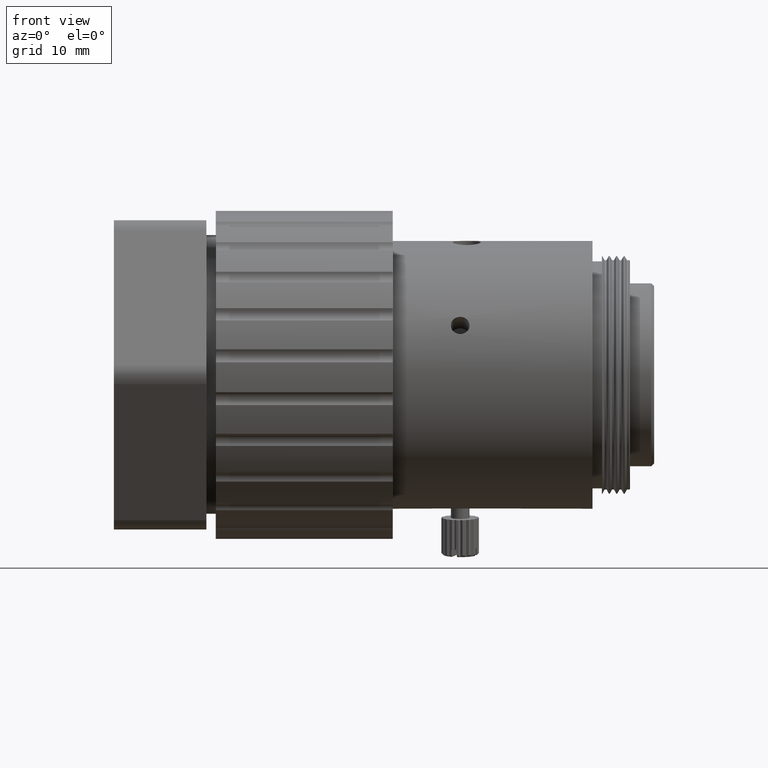
[diagram: clean part render]
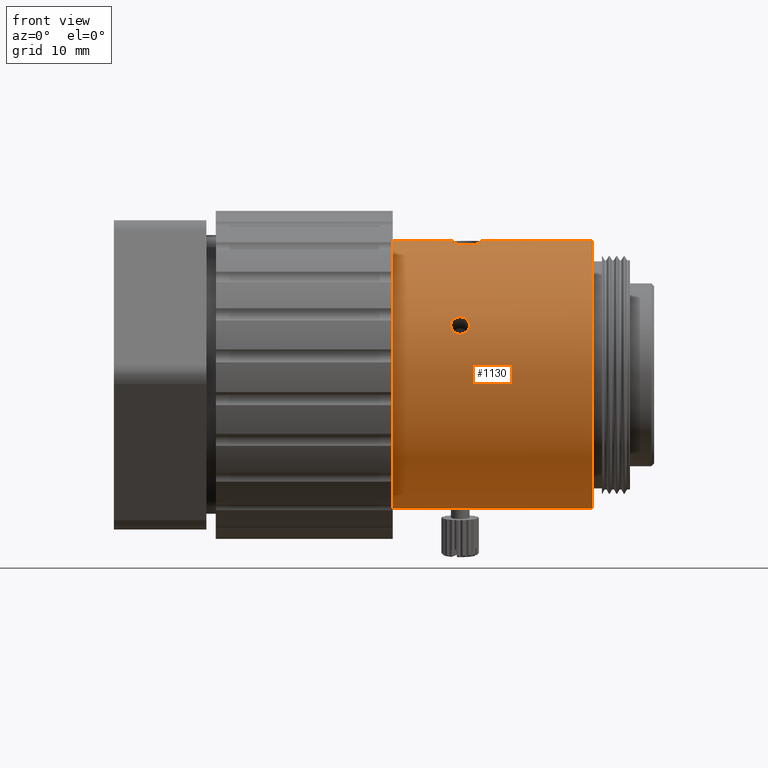
[diagram: same view with one face highlighted and labeled with its STEP entity id]
A machine part, front view. The second image highlights one B-rep face of the part: STEP entity #1130.
In plain terms, the highlighted cylindrical surface (bore or boss wall) has radius 14.3 mm, axis along (-1, 0, -0).
Its self-contained STEP definition (entity closure, byte-faithful):
#1 = CARTESIAN_POINT ( 'NONE',  ( -1.324077568558273743, -7.933964878548129818, 14.25220448190231437 ) ) ;
#70 = CARTESIAN_POINT ( 'NONE',  ( 0.2576665009666546657, -7.395506073452908780, 14.28601457630484362 ) ) ;
#139 = CARTESIAN_POINT ( 'NONE',  ( -0.5196871835990392041, -10.26879189229213551, 13.86359534184631315 ) ) ;
#218 = CARTESIAN_POINT ( 'NONE',  ( -8.031010005843386423, -8.842898544661640159, 14.14792264784226994 ) ) ;
#259 = CARTESIAN_POINT ( 'NONE',  ( -1.714414285791017400, -4.185195401091377221, -14.06627115634364600 ) ) ;
#297 = CARTESIAN_POINT ( 'NONE',  ( -1.103766873488263300, -5.651025446061972879, -14.25679402345944702 ) ) ;
#373 = CARTESIAN_POINT ( 'NONE',  ( -0.8410100058435787673, -19.65411457331178724, 6.189286193671206249 ) ) ;
#534 = DIRECTION ( 'NONE',  ( -1.000000000000000000, 0.000000000000000000, -0.000000000000000000 ) ) ;
#577 = FACE_BOUND ( 'NONE', #813, .T. ) ;
#617 = EDGE_CURVE ( 'NONE', #7153, #7153, #4363, .T. ) ;
#677 = CIRCLE ( 'NONE', #9296, 14.29999999999909122 ) ;
#714 = CARTESIAN_POINT ( 'NONE',  ( -8.031010005843386423, -6.762926249001210977, 2.442490654175344389E-12 ) ) ;
#729 = CARTESIAN_POINT ( 'NONE',  ( -1.714846124594646248, 4.130587007314180603, 9.264763993082496540 ) ) ;
#813 = EDGE_LOOP ( 'NONE', ( #8073 ) ) ;
#867 = FACE_OUTER_BOUND ( 'NONE', #996, .T. ) ;
#871 = CARTESIAN_POINT ( 'NONE',  ( -1.640345588966639623, -20.27007120597667722, 4.696334760391738250 ) ) ;
#996 = EDGE_LOOP ( 'NONE', ( #11852 ) ) ;
#1022 = CARTESIAN_POINT ( 'NONE',  ( -0.8410100058433567227, 3.801450460732880288, 9.637631697405945275 ) ) ;
#1041 = EDGE_CURVE ( 'NONE', #5941, #5941, #11538, .T. ) ;
#1083 = CARTESIAN_POINT ( 'NONE',  ( -1.260777506208356824, -7.856905644869738303, 14.25826126729743848 ) ) ;
#1097 = CARTESIAN_POINT ( 'NONE',  ( -1.841099935117180397, -20.00753024451163498, 5.393281480628593805 ) ) ;
#1130 = ADVANCED_FACE ( 'NONE', ( #867, #577, #2901, #5291, #10219, #12551 ), #8987, .T. ) ;
#1155 = CARTESIAN_POINT ( 'NONE',  ( -1.591805947792884091, -9.231458202062983176, 14.08649644016998970 ) ) ;
#1172 = CARTESIAN_POINT ( 'NONE',  ( -0.9731716438800619429, -20.39154841174547883, 4.330202991217740660 ) ) ;
#1234 = CARTESIAN_POINT ( 'NONE',  ( -1.323052682587636086, -9.744660795587805069, 13.98591675747003116 ) ) ;
#1297 = CARTESIAN_POINT ( 'NONE',  ( -0.7112399119408362447, -5.677501061011724026, -14.25874651466089915 ) ) ;
#1338 = CARTESIAN_POINT ( 'NONE',  ( -1.641019235365641649, -4.077027158768557591, -14.04580602406057110 ) ) ;
#1372 = CARTESIAN_POINT ( 'NONE',  ( -1.814981165695513488, -4.942283810026044222, -14.18414370698448224 ) ) ;
#1380 = CARTESIAN_POINT ( 'NONE',  ( -1.431734426196322740, -9.585459424632102099, 14.01891275832945105 ) ) ;
#1538 = CARTESIAN_POINT ( 'NONE',  ( -0.2278057847264330638, -5.478534078959100384, -14.24250882326109036 ) ) ;
#1816 = CARTESIAN_POINT ( 'NONE',  ( -1.345015930676815019, 3.886483774848635164, 9.543720230160252171 ) ) ;
#2037 = CARTESIAN_POINT ( 'NONE',  ( -0.7088483678064390059, 5.042746849530767683, 8.069453679810791868 ) ) ;
#2103 = EDGE_LOOP ( 'NONE', ( #2775 ) ) ;
#2110 = CARTESIAN_POINT ( 'NONE',  ( 0.1588995870903388841, -20.00700878938764760, 5.394561875668397732 ) ) ;
#2187 = CARTESIAN_POINT ( 'NONE',  ( 0.1332177597474683561, -20.14982100355666361, 5.029485253431262848 ) ) ;
#2223 = B_SPLINE_CURVE_WITH_KNOTS ( 'NONE', 3,
 ( #9284, #4725, #10611, #4426, #15251, #11767, #13004, #5676, #2110, #8129, #2187, #6739, #6814, #2333, #9431, #14017, #14167, #1172, #3427, #12856, #13869, #871, #2262, #7034, #10302, #1097, #5900, #15027, #3569, #8270, #9139, #3279, #10384, #7975 ),
 .UNSPECIFIED., .T., .F.,
 ( 4, 2, 2, 2, 2, 2, 2, 2, 2, 2, 2, 2, 2, 2, 2, 2, 4 ),
 ( 0.000000000000000000, 0.0003908431693369956907, 0.0007816863386739911646, 0.001172529508010986855, 0.001563372677347982329, 0.001954215846684977803, 0.002345059016021973711, 0.002735902185358969618, 0.003126745354695964658, 0.003517588524032960132, 0.003908431693369955606, 0.004299274862706951514, 0.004690118032043947421, 0.005080961201380943329, 0.005471804370717939237, 0.005862647540054934277, 0.006253490709391929317 ),
 .UNSPECIFIED. ) ;
#2262 = CARTESIAN_POINT ( 'NONE',  ( -1.714846412896286809, -20.23320367291355382, 4.801677728402728995 ) ) ;
#2317 = CARTESIAN_POINT ( 'NONE',  ( -1.261016311228543962, -9.818783345851333166, 13.96984823910166007 ) ) ;
#2333 = CARTESIAN_POINT ( 'NONE',  ( -0.2266751854507750019, -20.32981705516531079, 4.520864882232913828 ) ) ;
#2393 = CARTESIAN_POINT ( 'NONE',  ( -0.8861707231130360185, -7.537428191131359867, 14.27920871567875238 ) ) ;
#2468 = CARTESIAN_POINT ( 'NONE',  ( -1.714599127749960150, -5.182817799216376642, -14.21294933776600899 ) ) ;
#2474 = CARTESIAN_POINT ( 'NONE',  ( -1.621273692521509657, -8.648186899590605492, 14.17550672354408903 ) ) ;
#2506 = CARTESIAN_POINT ( 'NONE',  ( -1.814918637841710813, -4.423914415973449366, -14.10793054324435758 ) ) ;
#2541 = CARTESIAN_POINT ( 'NONE',  ( 0.1589897523740101126, -4.552197868184499008, -14.12869938212083554 ) ) ;
#2616 = CARTESIAN_POINT ( 'NONE',  ( 0.03257849589950682911, -4.185524364422300359, -14.06633111587612639 ) ) ;
#2622 = CARTESIAN_POINT ( 'NONE',  ( 0.7831146039068154208, -7.655069183605246685, 14.27224738486628119 ) ) ;
#2702 = CARTESIAN_POINT ( 'NONE',  ( -1.841010005843247033, -4.682953953341063347, -14.14792264783738140 ) ) ;
#2775 = ORIENTED_EDGE ( 'NONE', *, *, #13595, .T. ) ;
#2778 = ORIENTED_EDGE ( 'NONE', *, *, #1041, .T. ) ;
#2782 = CARTESIAN_POINT ( 'NONE',  ( -0.9707799492493370819, -3.698592656655641076, -13.96781513490568116 ) ) ;
#2901 = FACE_OUTER_BOUND ( 'NONE', #9277, .T. ) ;
#3205 = CARTESIAN_POINT ( 'NONE',  ( -1.455344826235760225, 4.928752841587842326, 8.234281114492493003 ) ) ;
#3279 = CARTESIAN_POINT ( 'NONE',  ( -1.103111584080375795, -19.66549540241833327, 6.165731513324310242 ) ) ;
#3427 = CARTESIAN_POINT ( 'NONE',  ( -1.102851864107148083, -20.38370741108595041, 4.355094744357121961 ) ) ;
#3485 = CARTESIAN_POINT ( 'NONE',  ( -1.120894808578486224, -9.955713207471998061, 13.93919057397951811 ) ) ;
#3500 = EDGE_CURVE ( 'NONE', #11956, #11956, #677, .T. ) ;
#3554 = CARTESIAN_POINT ( 'NONE',  ( 0.2632882036912740920, -10.27689395650226167, 13.86173458820014126 ) ) ;
#3569 = CARTESIAN_POINT ( 'NONE',  ( -1.641887228905079654, -19.81733180044328790, 5.837914107047343926 ) ) ;
#3627 = CARTESIAN_POINT ( 'NONE',  ( -0.8826540635521380462, -10.12219139556824210, 13.89993892522970853 ) ) ;
#3702 = CARTESIAN_POINT ( 'NONE',  ( 0.1589902359357120709, -4.813706418491240591, -14.16714538135459378 ) ) ;
#3764 = CARTESIAN_POINT ( 'NONE',  ( 13.28103147476089596, -8.842898544661640159, 14.14792264784226994 ) ) ;
#3779 = CARTESIAN_POINT ( 'NONE',  ( 0.03239491071602267069, -5.183150062208943254, -14.21298659020778743 ) ) ;
#3786 = CARTESIAN_POINT ( 'NONE',  ( -0.6132178947385144019, -10.24120488338116353, 13.87058042299346816 ) ) ;
#3819 = CARTESIAN_POINT ( 'NONE',  ( -1.841010005843247033, -4.682953953341063347, -14.14792264783738140 ) ) ;
#3939 = CARTESIAN_POINT ( 'NONE',  ( -0.3376503357439502029, -3.822284809402667793, -13.99446773319538018 ) ) ;
#4131 = CARTESIAN_POINT ( 'NONE',  ( -1.103110117989907435, 5.028038684698254990, 8.091086563228067519 ) ) ;
#4350 = CARTESIAN_POINT ( 'NONE',  ( -1.815237771434135894, 4.609986155330647151, 8.669575337203038856 ) ) ;
#4363 = B_SPLINE_CURVE_WITH_KNOTS ( 'NONE', 3,
 ( #10135, #7322, #14221, #14379, #4937, #14075, #5804, #13066, #14148, #11972, #5959, #3554, #8181, #5880, #11748, #139, #3786, #7017, #3627, #12909, #3485, #2317, #1234, #1380, #9644, #1155, #12985, #4628, #2474, #10663, #8485, #10593, #4856, #1, #1083, #13213, #2393, #9559, #6099, #9342, #7173, #70, #11902, #7092, #8254, #2622, #10515, #4706, #14303, #9412, #11830, #4776, #9481, #8330 ),
 .UNSPECIFIED., .T., .F.,
 ( 4, 2, 2, 2, 2, 2, 2, 2, 2, 2, 2, 2, 2, 2, 2, 2, 2, 2, 2, 2, 2, 2, 2, 2, 2, 2, 4 ),
 ( 0.000000000000000000, 0.0002932417783834793284, 0.0005864835567669586568, 0.0008797253351504380394, 0.001172967113533917314, 0.001759450670300872393, 0.002345934227067827688, 0.002639176005451305661, 0.002932417783834783201, 0.003225659562218260740, 0.003518901340601738714, 0.003812143118985216687, 0.004105384897368694226, 0.004691868454135644968, 0.004985110232519121207, 0.005278352010902596578, 0.005571593789286071081, 0.005864835567669546453, 0.006451319124436494593, 0.007037802681203442733, 0.007331044459586918104, 0.007624286237970391740, 0.007917528016353866244, 0.008210769794737339880, 0.008504011573120813516, 0.008797253351504288887, 0.009383736908271236160 ),
 .UNSPECIFIED. ) ;
#4426 = CARTESIAN_POINT ( 'NONE',  ( -0.3370040810100923268, -19.70852107884628523, 6.074874829090322947 ) ) ;
#4442 = B_SPLINE_CURVE_WITH_KNOTS ( 'NONE', 3,
 ( #6594, #14952, #12414, #1816, #6526, #7901, #729, #11240, #5374, #11172, #4350, #14729, #9064, #3205, #10076, #4131, #12632, #2037, #5222, #9929, #6958, #10533, #8200, #8047, #11541, #10457, #11466, #12927, #4567, #6890, #5749, #4649, #11619, #1022 ),
 .UNSPECIFIED., .T., .F.,
 ( 4, 2, 2, 2, 2, 2, 2, 2, 2, 2, 2, 2, 2, 2, 2, 2, 4 ),
 ( 0.000000000000000000, 0.0003908431693371043278, 0.0007816863386742086556, 0.001172529508011312983, 0.001563372677348417311, 0.001954215846685521639, 0.002345059016022625967, 0.002735902185359730295, 0.003126745354696834622, 0.003517588524033938950, 0.003908431693371043278, 0.004299274862708147606, 0.004690118032045251933, 0.005080961201382356261, 0.005471804370719460589, 0.005862647540056564917, 0.006253490709393669245 ),
 .UNSPECIFIED. ) ;
#4567 = CARTESIAN_POINT ( 'NONE',  ( -0.04013278278177168784, 4.058890418446043924, 9.348102986112307278 ) ) ;
#4628 = CARTESIAN_POINT ( 'NONE',  ( -1.631009727645286178, -8.744789260945243115, 14.16234626181440071 ) ) ;
#4649 = CARTESIAN_POINT ( 'NONE',  ( -0.5789084276065589174, 3.819129041659767410, 9.618349217954323294 ) ) ;
#4706 = CARTESIAN_POINT ( 'NONE',  ( 0.9989947704051322930, -7.857052695725466940, 14.25825409035093472 ) ) ;
#4725 = CARTESIAN_POINT ( 'NONE',  ( -0.7088500257487777567, -19.65411457331176948, 6.189286193671231118 ) ) ;
#4776 = CARTESIAN_POINT ( 'NONE',  ( 1.329784999884965568, -8.453097508019340012, 14.20092788938021044 ) ) ;
#4856 = CARTESIAN_POINT ( 'NONE',  ( -1.432905745277648801, -8.096605016177560898, 14.23790592088002249 ) ) ;
#4937 = CARTESIAN_POINT ( 'NONE',  ( 1.292254247551325674, -9.320322247439058572, 14.06975422911240692 ) ) ;
#5051 = CARTESIAN_POINT ( 'NONE',  ( -1.841010005843285890, -4.552199484022978915, -14.12869963676466689 ) ) ;
#5178 = VERTEX_POINT ( 'NONE', #373 ) ;
#5222 = CARTESIAN_POINT ( 'NONE',  ( -0.5791681475793720724, 5.028073491634358128, 8.091035459944505348 ) ) ;
#5291 = FACE_BOUND ( 'NONE', #11018, .T. ) ;
#5374 = CARTESIAN_POINT ( 'NONE',  ( -1.840919598777093658, 4.368143491854023175, 8.978101502612801710 ) ) ;
#5676 = CARTESIAN_POINT ( 'NONE',  ( 0.1326018986403409428, -19.95671655917114151, 5.516192542350639272 ) ) ;
#5749 = CARTESIAN_POINT ( 'NONE',  ( -0.3366688958946494892, 3.886607522474154308, 9.543582466942584830 ) ) ;
#5804 = CARTESIAN_POINT ( 'NONE',  ( 1.170887124100852716, -9.583510089605155713, 14.01930707634764950 ) ) ;
#5880 = CARTESIAN_POINT ( 'NONE',  ( -0.2278293224048460464, -10.31553924168631653, 13.85167646637587779 ) ) ;
#5900 = CARTESIAN_POINT ( 'NONE',  ( -1.815237830321125623, -19.95745504798291492, 5.514443111198973568 ) ) ;
#5941 = VERTEX_POINT ( 'NONE', #10792 ) ;
#5959 = CARTESIAN_POINT ( 'NONE',  ( 0.6241519356859394074, -10.13091563494434766, 13.89792438960721377 ) ) ;
#6097 = VERTEX_POINT ( 'NONE', #12213 ) ;
#6099 = CARTESIAN_POINT ( 'NONE',  ( -0.3278500647118588462, -7.347516443992144097, 14.28804585391518245 ) ) ;
#6166 = CARTESIAN_POINT ( 'NONE',  ( 1.368989994156688539, -8.842898544661359495, 14.14792264784225928 ) ) ;
#6178 = CARTESIAN_POINT ( 'NONE',  ( -1.344370208601159744, -5.551371476245307690, -14.24867131544335486 ) ) ;
#6526 = CARTESIAN_POINT ( 'NONE',  ( -1.455915385315070809, 3.936161120915691036, 9.488311468674547555 ) ) ;
#6594 = CARTESIAN_POINT ( 'NONE',  ( -0.8410100058433567227, 3.801450460732880288, 9.637631697405945275 ) ) ;
#6739 = CARTESIAN_POINT ( 'NONE',  ( 0.03312984752199542304, -20.23310146094832973, 4.801984261060337822 ) ) ;
#6814 = CARTESIAN_POINT ( 'NONE',  ( -0.04013322721654085518, -20.26952944934588530, 4.697916071858545095 ) ) ;
#6890 = CARTESIAN_POINT ( 'NONE',  ( -0.2266743211932380764, 3.935703449193189929, 9.488839128350448959 ) ) ;
#6958 = CARTESIAN_POINT ( 'NONE',  ( -0.2261037824484187775, 4.928343565622881783, 8.234848826304490998 ) ) ;
#7017 = CARTESIAN_POINT ( 'NONE',  ( -0.7948972730577865686, -10.16796359277467232, 13.88874163546222995 ) ) ;
#7034 = CARTESIAN_POINT ( 'NONE',  ( -1.814621972014573537, -20.15048229102953670, 5.027705849207287692 ) ) ;
#7092 = CARTESIAN_POINT ( 'NONE',  ( 0.5328761561654066226, -7.499305061771249115, 14.28107733202184804 ) ) ;
#7153 = VERTEX_POINT ( 'NONE', #6166 ) ;
#7167 = CARTESIAN_POINT ( 'NONE',  ( -1.455884530914832942, -5.476997234090686284, -14.24236325165291461 ) ) ;
#7173 = CARTESIAN_POINT ( 'NONE',  ( 0.06524792392250186590, -7.357085846437366072, 14.28766405265298722 ) ) ;
#7317 = CARTESIAN_POINT ( 'NONE',  ( -0.04169923664252500606, -4.076467262752681897, -14.04569195528417147 ) ) ;
#7322 = CARTESIAN_POINT ( 'NONE',  ( 1.368989994156724066, -8.941003881337856285, 14.13349958465321166 ) ) ;
#7401 = CIRCLE ( 'NONE', #10610, 14.29999999999909122 ) ;
#7480 = CARTESIAN_POINT ( 'NONE',  ( -1.101868330594590883, -3.723906601179372888, -13.97343459795915876 ) ) ;
#7634 = DIRECTION ( 'NONE',  ( 0.000000000000000000, -0.1454526080881511640, 0.9893652201287221892 ) ) ;
#7683 = DIRECTION ( 'NONE',  ( -1.000000000000000000, 0.000000000000000000, -0.000000000000000000 ) ) ;
#7901 = CARTESIAN_POINT ( 'NONE',  ( -1.640345139018596132, 4.057791031923667191, 9.349363753859897486 ) ) ;
#7975 = CARTESIAN_POINT ( 'NONE',  ( -0.8410100058435786563, -19.65411457331178369, 6.189286193671206249 ) ) ;
#8047 = CARTESIAN_POINT ( 'NONE',  ( 0.1326019603279338654, 4.611131594802298395, 8.668061550913906288 ) ) ;
#8073 = ORIENTED_EDGE ( 'NONE', *, *, #617, .T. ) ;
#8129 = CARTESIAN_POINT ( 'NONE',  ( 0.1590799235357599761, -20.10322714434395408, 5.152027968547962189 ) ) ;
#8181 = CARTESIAN_POINT ( 'NONE',  ( 0.06583039920600963768, -10.31533572888777783, 13.85172866132138481 ) ) ;
#8200 = CARTESIAN_POINT ( 'NONE',  ( 0.03282640120968507297, 4.755406286496934420, 8.475405505714997290 ) ) ;
#8254 = CARTESIAN_POINT ( 'NONE',  ( 0.6206328438540635872, -7.546363058196155826, 14.27862707673902776 ) ) ;
#8270 = CARTESIAN_POINT ( 'NONE',  ( -1.455345690493700550, -19.73986271251861524, 6.008149918620295793 ) ) ;
#8330 = CARTESIAN_POINT ( 'NONE',  ( 1.368989994156688539, -8.842898544661359495, 14.14792264784226283 ) ) ;
#8485 = CARTESIAN_POINT ( 'NONE',  ( -1.554273174695250948, -8.363175130635664090, 14.21047014809751907 ) ) ;
#8557 = CARTESIAN_POINT ( 'NONE',  ( -0.9721625394223526451, -5.677320785123513680, -14.25873279028943763 ) ) ;
#8641 = CARTESIAN_POINT ( 'NONE',  ( -0.7098576227588078158, -3.698769254372711313, -13.96785387668223599 ) ) ;
#8829 = DIRECTION ( 'NONE',  ( 1.000000000000000000, -0.000000000000000000, 0.000000000000000000 ) ) ;
#8987 = CYLINDRICAL_SURFACE ( 'NONE', #13814, 14.29999999999909122 ) ;
#9064 = CARTESIAN_POINT ( 'NONE',  ( -1.641886784470039995, 4.820058811518737940, 8.386489284413210399 ) ) ;
#9139 = CARTESIAN_POINT ( 'NONE',  ( -1.345351115792179364, -19.70859994050943698, 6.074707279046708486 ) ) ;
#9277 = EDGE_LOOP ( 'NONE', ( #10234 ) ) ;
#9284 = CARTESIAN_POINT ( 'NONE',  ( -0.8410100058435786563, -19.65411457331178369, 6.189286193671206249 ) ) ;
#9296 = AXIS2_PLACEMENT_3D ( 'NONE', #11124, #534, #7634 ) ;
#9342 = CARTESIAN_POINT ( 'NONE',  ( -0.03419086237782214405, -7.347306520479613745, 14.28805444079967657 ) ) ;
#9412 = CARTESIAN_POINT ( 'NONE',  ( 1.169713014477369528, -8.094624668242291321, 14.23808932877501654 ) ) ;
#9431 = CARTESIAN_POINT ( 'NONE',  ( -0.3366699789699931777, -20.35267819505787656, 4.450974936574207064 ) ) ;
#9449 = VERTEX_POINT ( 'NONE', #218 ) ;
#9481 = CARTESIAN_POINT ( 'NONE',  ( 1.368989994156617929, -8.646687871308373019, 14.17676877422036164 ) ) ;
#9554 = CARTESIAN_POINT ( 'NONE',  ( -0.04100009312319751603, -5.292631704347914301, -14.22451949202848631 ) ) ;
#9559 = CARTESIAN_POINT ( 'NONE',  ( -0.5253075253041690207, -7.387211312795281870, 14.28656442128067994 ) ) ;
#9644 = CARTESIAN_POINT ( 'NONE',  ( -1.478758329500357460, -9.499366949360206647, 14.03603043185654364 ) ) ;
#9929 = CARTESIAN_POINT ( 'NONE',  ( -0.3370030366896057950, 4.970866733027122564, 8.173777092180241510 ) ) ;
#10076 = CARTESIAN_POINT ( 'NONE',  ( -1.345350032716581934, 4.970761790163447991, 8.173928115719206744 ) ) ;
#10135 = CARTESIAN_POINT ( 'NONE',  ( 1.368989994156688539, -8.842898544661359495, 14.14792264784226283 ) ) ;
#10219 = FACE_BOUND ( 'NONE', #14265, .T. ) ;
#10234 = ORIENTED_EDGE ( 'NONE', *, *, #10392, .T. ) ;
#10302 = CARTESIAN_POINT ( 'NONE',  ( -1.840919598882344355, -20.10372504220688938, 5.150738557370465820 ) ) ;
#10384 = CARTESIAN_POINT ( 'NONE',  ( -0.9731699859383793338, -19.65411457331179790, 6.189286193671180492 ) ) ;
#10392 = EDGE_CURVE ( 'NONE', #9449, #9449, #7401, .T. ) ;
#10457 = CARTESIAN_POINT ( 'NONE',  ( 0.1590799234304494936, 4.369011395108674201, 8.977025365612412600 ) ) ;
#10515 = CARTESIAN_POINT ( 'NONE',  ( 0.8588733527086317432, -7.717093582833986609, 14.26830358120674624 ) ) ;
#10533 = CARTESIAN_POINT ( 'NONE',  ( -0.04167442271994183794, 4.821032764473408783, 8.385130806646365897 ) ) ;
#10593 = CARTESIAN_POINT ( 'NONE',  ( -1.478974244821503969, -8.182440564220211598, 14.22966048161485197 ) ) ;
#10610 = AXIS2_PLACEMENT_3D ( 'NONE', #714, #8829, #13553 ) ;
#10611 = CARTESIAN_POINT ( 'NONE',  ( -0.5791696516382146553, -19.66546818535686114, 6.165787968152248055 ) ) ;
#10663 = CARTESIAN_POINT ( 'NONE',  ( -1.583139219543386655, -8.457877230514037947, 14.19951899749329804 ) ) ;
#10725 = CARTESIAN_POINT ( 'NONE',  ( -1.640321441194521279, -5.293200759816193646, -14.22457139635012702 ) ) ;
#10792 = CARTESIAN_POINT ( 'NONE',  ( -1.841010005843246589, -4.682953953341062459, -14.14792264783737430 ) ) ;
#11018 = EDGE_LOOP ( 'NONE', ( #14319 ) ) ;
#11124 = CARTESIAN_POINT ( 'NONE',  ( 13.28103147476089596, -6.762926249001210977, 2.442490654175344389E-12 ) ) ;
#11172 = CARTESIAN_POINT ( 'NONE',  ( -1.841099935222452633, 4.530094615418379433, 8.773522663262687260 ) ) ;
#11240 = CARTESIAN_POINT ( 'NONE',  ( -1.814621910327116172, 4.284972567854180348, 9.080110937954522399 ) ) ;
#11466 = CARTESIAN_POINT ( 'NONE',  ( 0.1332178186343623838, 4.286183315455460274, 9.078648075922798100 ) ) ;
#11538 = B_SPLINE_CURVE_WITH_KNOTS ( 'NONE', 3,
 ( #2702, #14450, #1372, #2468, #10725, #7167, #6178, #297, #8557, #1297, #13287, #12135, #1538, #9554, #3779, #14295, #3702, #2541, #13207, #2616, #7317, #12209, #3939, #13369, #8641, #2782, #7480, #14572, #12245, #1338, #259, #2506, #5051, #3819 ),
 .UNSPECIFIED., .T., .F.,
 ( 4, 2, 2, 2, 2, 2, 2, 2, 2, 2, 2, 2, 2, 2, 2, 2, 4 ),
 ( 0.000000000000000000, 0.0003908431836607677312, 0.0007816863673215354623, 0.001172529550982303248, 0.001563372734643070925, 0.001954215918303838385, 0.002345059101964606495, 0.002735902285625374172, 0.003126745469286141849, 0.003517588652946909093, 0.003908431836607676770, 0.004299275020268444880, 0.004690118203929212991, 0.005080961387589980234, 0.005471804571250748345, 0.005862647754911514721, 0.006253490938572281964 ),
 .UNSPECIFIED. ) ;
#11541 = CARTESIAN_POINT ( 'NONE',  ( 0.1588995871956689343, 4.530942553136697803, 8.772431111573036233 ) ) ;
#11619 = CARTESIAN_POINT ( 'NONE',  ( -0.7088500257485629286, 3.801450460732880732, 9.637631697405947051 ) ) ;
#11748 = CARTESIAN_POINT ( 'NONE',  ( -0.3272682854306628308, -10.30606131533783199, 13.85411720799872271 ) ) ;
#11767 = CARTESIAN_POINT ( 'NONE',  ( -0.04167487266824084630, -19.81664179563804140, 5.839437944115037027 ) ) ;
#11830 = CARTESIAN_POINT ( 'NONE',  ( 1.216736986804124454, -8.182000707673095619, 14.22970434098420967 ) ) ;
#11852 = ORIENTED_EDGE ( 'NONE', *, *, #3500, .T. ) ;
#11902 = CARTESIAN_POINT ( 'NONE',  ( 0.3511970606748266999, -7.423936083794493435, 14.28476424437559444 ) ) ;
#11956 = VERTEX_POINT ( 'NONE', #3764 ) ;
#11972 = CARTESIAN_POINT ( 'NONE',  ( 0.7913614308331510250, -10.02186539811941479, 13.92438640969139385 ) ) ;
#12135 = CARTESIAN_POINT ( 'NONE',  ( -0.3379729894041065830, -5.551674624080312093, -14.24869763859061855 ) ) ;
#12209 = CARTESIAN_POINT ( 'NONE',  ( -0.2261360911794768336, -3.895327436769534302, -14.00983231304420684 ) ) ;
#12213 = CARTESIAN_POINT ( 'NONE',  ( -0.8410100058433567227, 3.801450460732880288, 9.637631697405947051 ) ) ;
#12245 = CARTESIAN_POINT ( 'NONE',  ( -1.454213617202209097, -3.893813728473686897, -14.00952940440903483 ) ) ;
#12332 = DIRECTION ( 'NONE',  ( 0.000000000000000000, -0.1454526080881511640, 0.9893652201287221892 ) ) ;
#12414 = CARTESIAN_POINT ( 'NONE',  ( -1.102850360048607481, 3.819086727882864185, 9.618395450630062626 ) ) ;
#12551 = FACE_BOUND ( 'NONE', #2103, .T. ) ;
#12632 = CARTESIAN_POINT ( 'NONE',  ( -0.9731679351907427389, 5.042747126794065338, 8.069453274172426305 ) ) ;
#12856 = CARTESIAN_POINT ( 'NONE',  ( -1.345016974996918302, -20.35273523117059113, 4.450800099518989583 ) ) ;
#12909 = CARTESIAN_POINT ( 'NONE',  ( -1.045135993432272592, -10.01624844583899332, 13.92511612639616914 ) ) ;
#12927 = CARTESIAN_POINT ( 'NONE',  ( 0.03313013972072371971, 4.130802070914167068, 9.264521377043672956 ) ) ;
#12985 = CARTESIAN_POINT ( 'NONE',  ( -1.631010562222008353, -9.039104621614336921, 14.11907725619769849 ) ) ;
#13004 = CARTESIAN_POINT ( 'NONE',  ( 0.03282611290778518487, -19.86200877624784766, 5.737466327343610395 ) ) ;
#13066 = CARTESIAN_POINT ( 'NONE',  ( 1.062059052962541106, -9.743384186420279036, 13.98619085334111212 ) ) ;
#13207 = CARTESIAN_POINT ( 'NONE',  ( 0.1329607319976948143, -4.424170799412355137, -14.10797272761448617 ) ) ;
#13213 = CARTESIAN_POINT ( 'NONE',  ( -1.053380039402510349, -7.649479900566722002, 14.27316516275075031 ) ) ;
#13287 = CARTESIAN_POINT ( 'NONE',  ( -0.5801513849736606998, -5.651640819130809845, -14.25684255325172245 ) ) ;
#13369 = CARTESIAN_POINT ( 'NONE',  ( -0.5782534381922949107, -3.724509900739332746, -13.97356523247899496 ) ) ;
#13553 = DIRECTION ( 'NONE',  ( 0.000000000000000000, -0.1454526080881511640, 0.9893652201287221892 ) ) ;
#13595 = EDGE_CURVE ( 'NONE', #6097, #6097, #4442, .T. ) ;
#13616 = EDGE_CURVE ( 'NONE', #5178, #5178, #2223, .T. ) ;
#13709 = CARTESIAN_POINT ( 'NONE',  ( -32.35023582608875614, -6.762926249001210977, 2.442490654175344389E-12 ) ) ;
#13814 = AXIS2_PLACEMENT_3D ( 'NONE', #13709, #7683, #12332 ) ;
#13869 = CARTESIAN_POINT ( 'NONE',  ( -1.455916229238145565, -20.32958849085260056, 4.521526366829543342 ) ) ;
#14017 = CARTESIAN_POINT ( 'NONE',  ( -0.5789098936965944020, -20.38368878504584814, 4.355153703148122446 ) ) ;
#14075 = CARTESIAN_POINT ( 'NONE',  ( 1.216955545299813757, -9.498933123320187022, 14.03611501606236267 ) ) ;
#14148 = CARTESIAN_POINT ( 'NONE',  ( 0.9987589934000715708, -9.818926272521085963, 13.96981278229209522 ) ) ;
#14167 = CARTESIAN_POINT ( 'NONE',  ( -0.7088520764957985110, -20.39154856052955722, 4.330202522943605636 ) ) ;
#14221 = CARTESIAN_POINT ( 'NONE',  ( 1.359254189288141346, -9.037306662808239466, 14.11829991051711808 ) ) ;
#14265 = EDGE_LOOP ( 'NONE', ( #2778 ) ) ;
#14295 = CARTESIAN_POINT ( 'NONE',  ( 0.1328990329873946385, -4.942541523482764987, -14.18417710214031047 ) ) ;
#14303 = CARTESIAN_POINT ( 'NONE',  ( 1.061031188205673770, -7.932663422203853010, 14.25230940443035799 ) ) ;
#14319 = ORIENTED_EDGE ( 'NONE', *, *, #13616, .T. ) ;
#14379 = CARTESIAN_POINT ( 'NONE',  ( 1.321120115488146673, -9.226475202656603258, 14.08652282087243179 ) ) ;
#14450 = CARTESIAN_POINT ( 'NONE',  ( -1.841010005843207953, -4.813708422659147779, -14.16714565891009414 ) ) ;
#14572 = CARTESIAN_POINT ( 'NONE',  ( -1.344046480294017520, -3.821986908766920266, -13.99440569228831066 ) ) ;
#14729 = CARTESIAN_POINT ( 'NONE',  ( -1.715149859208583427, 4.755220175793933635, 8.475669650300353908 ) ) ;
#14952 = CARTESIAN_POINT ( 'NONE',  ( -0.9731699859381505169, 3.801450460732880288, 9.637631697405943498 ) ) ;
#15027 = CARTESIAN_POINT ( 'NONE',  ( -1.715150151407530021, -19.86214491219174505, 5.737172079320013829 ) ) ;
#15251 = CARTESIAN_POINT ( 'NONE',  ( -0.2261046263718785310, -19.74014915228836387, 6.007512862581208424 ) ) ;